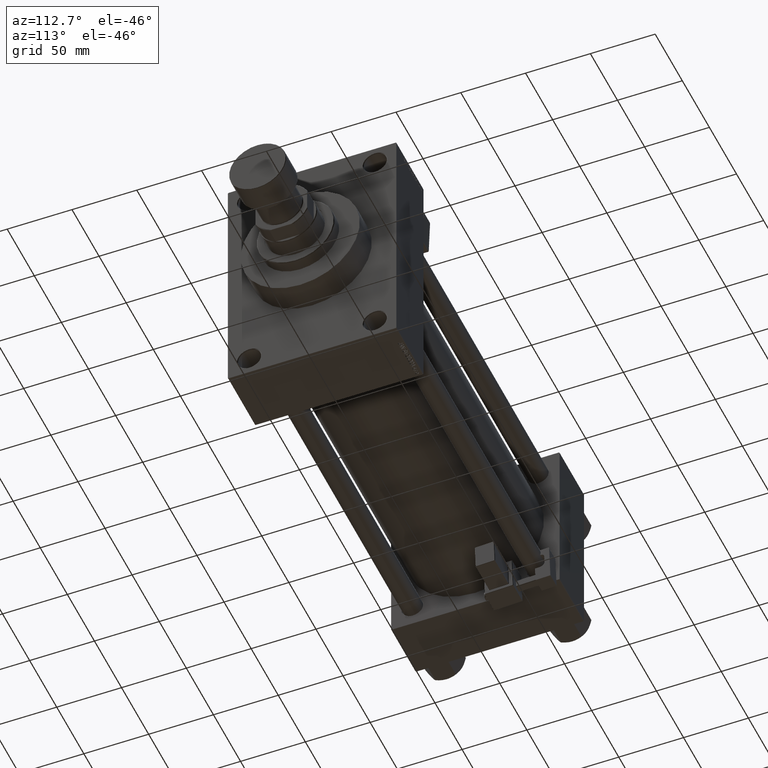
[diagram: clean part render]
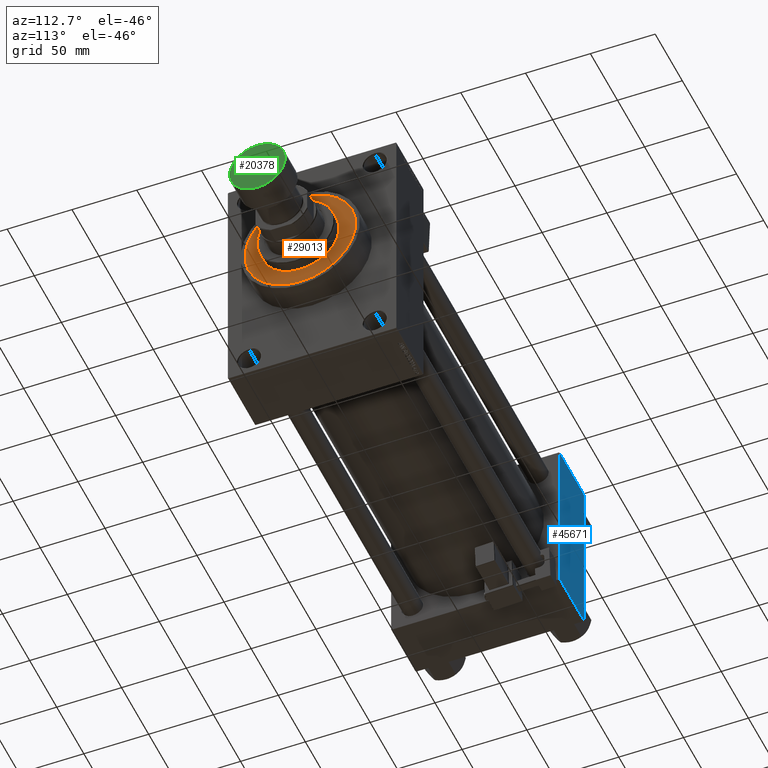
[diagram: same view with three faces highlighted in distinct colors, each labeled with its STEP entity id]
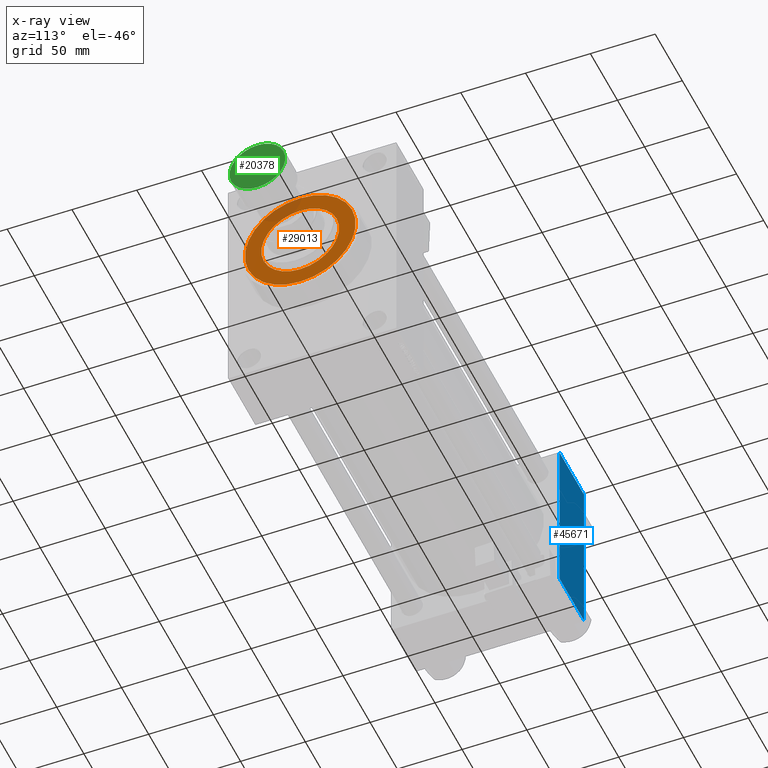
[diagram: x-ray of the same camera — body ghosted, the three highlighted faces saturated]
A machine part, auxiliary view with three faces highlighted in distinct colors.
The next image is the same camera in x-ray (body ghosted, the three faces saturated) — at least one of them is partly hidden behind the body in this view.
Their STEP definitions:

[orange] entity #29013 — the highlighted planar face has unit normal (1, -0, -0).
#2011 = DIRECTION ( 'NONE',  ( 0.000000000000000000, 0.000000000000000000, 1.000000000000000000 ) ) ;
#3142 = CARTESIAN_POINT ( 'NONE',  ( 42.75000000000000000, 5.235365066354935472E-15, 43.25999999999999801 ) ) ;
#3721 = DIRECTION ( 'NONE',  ( 0.000000000000000000, 0.000000000000000000, 1.000000000000000000 ) ) ;
#4889 = AXIS2_PLACEMENT_3D ( 'NONE', #36610, #2011, #28713 ) ;
#5524 = DIRECTION ( 'NONE',  ( 0.000000000000000000, 0.000000000000000000, 1.000000000000000000 ) ) ;
#6264 = DIRECTION ( 'NONE',  ( 1.000000000000000000, 0.000000000000000000, 0.000000000000000000 ) ) ;
#9333 = EDGE_CURVE ( 'NONE', #48675, #47673, #48890, .T. ) ;
#12107 = CARTESIAN_POINT ( 'NONE',  ( -30.00000000000000000, 0.000000000000000000, 43.25999999999999801 ) ) ;
#12560 = DIRECTION ( 'NONE',  ( 1.000000000000000000, 0.000000000000000000, 0.000000000000000000 ) ) ;
#12808 = CARTESIAN_POINT ( 'NONE',  ( 0.000000000000000000, 0.000000000000000000, 43.25999999999999801 ) ) ;
#19235 = DIRECTION ( 'NONE',  ( 1.000000000000000000, 0.000000000000000000, -0.000000000000000000 ) ) ;
#19456 = DIRECTION ( 'NONE',  ( 0.000000000000000000, 0.000000000000000000, 1.000000000000000000 ) ) ;
#19711 = AXIS2_PLACEMENT_3D ( 'NONE', #41117, #22528, #6264 ) ;
#22084 = EDGE_CURVE ( 'NONE', #47673, #48675, #29057, .T. ) ;
#22528 = DIRECTION ( 'NONE',  ( 0.000000000000000000, 0.000000000000000000, 1.000000000000000000 ) ) ;
#26165 = CIRCLE ( 'NONE', #19711, 30.00000000000000000 ) ;
#26713 = EDGE_CURVE ( 'NONE', #43034, #42882, #44691, .T. ) ;
#27727 = AXIS2_PLACEMENT_3D ( 'NONE', #12808, #19456, #12560 ) ;
#28668 = CARTESIAN_POINT ( 'NONE',  ( 0.000000000000000000, 0.000000000000000000, 43.25999999999999801 ) ) ;
#28713 = DIRECTION ( 'NONE',  ( 1.000000000000000000, 0.000000000000000000, 0.000000000000000000 ) ) ;
#29013 = ADVANCED_FACE ( 'NONE', ( #30419, #45949 ), #38332, .T. ) ;
#29057 = CIRCLE ( 'NONE', #48622, 42.75000000000000000 ) ;
#30419 = FACE_BOUND ( 'NONE', #35155, .T. ) ;
#30892 = EDGE_CURVE ( 'NONE', #42882, #43034, #26165, .T. ) ;
#31512 = ORIENTED_EDGE ( 'NONE', *, *, #9333, .T. ) ;
#31953 = ORIENTED_EDGE ( 'NONE', *, *, #26713, .F. ) ;
#32245 = EDGE_LOOP ( 'NONE', ( #31512, #36092 ) ) ;
#35155 = EDGE_LOOP ( 'NONE', ( #37975, #31953 ) ) ;
#36092 = ORIENTED_EDGE ( 'NONE', *, *, #22084, .T. ) ;
#36610 = CARTESIAN_POINT ( 'NONE',  ( 0.000000000000000000, 0.000000000000000000, 43.25999999999999801 ) ) ;
#36674 = AXIS2_PLACEMENT_3D ( 'NONE', #38575, #3721, #19235 ) ;
#37008 = CARTESIAN_POINT ( 'NONE',  ( -42.75000000000000000, 0.000000000000000000, 43.25999999999999801 ) ) ;
#37975 = ORIENTED_EDGE ( 'NONE', *, *, #30892, .F. ) ;
#38332 = PLANE ( 'NONE',  #36674 ) ;
#38575 = CARTESIAN_POINT ( 'NONE',  ( 0.000000000000000000, 0.000000000000000000, 43.25999999999999801 ) ) ;
#39037 = CARTESIAN_POINT ( 'NONE',  ( 30.00000000000000000, 3.673940397442059178E-15, 43.25999999999999801 ) ) ;
#41117 = CARTESIAN_POINT ( 'NONE',  ( 0.000000000000000000, 0.000000000000000000, 43.25999999999999801 ) ) ;
#42882 = VERTEX_POINT ( 'NONE', #12107 ) ;
#43034 = VERTEX_POINT ( 'NONE', #39037 ) ;
#44202 = DIRECTION ( 'NONE',  ( 1.000000000000000000, 0.000000000000000000, 0.000000000000000000 ) ) ;
#44691 = CIRCLE ( 'NONE', #4889, 30.00000000000000000 ) ;
#45949 = FACE_OUTER_BOUND ( 'NONE', #32245, .T. ) ;
#47673 = VERTEX_POINT ( 'NONE', #3142 ) ;
#48622 = AXIS2_PLACEMENT_3D ( 'NONE', #28668, #5524, #44202 ) ;
#48675 = VERTEX_POINT ( 'NONE', #37008 ) ;
#48890 = CIRCLE ( 'NONE', #27727, 42.75000000000000000 ) ;

[blue] entity #45671 — the highlighted planar face has unit normal (0, 1, 0).
#1414 = PLANE ( 'NONE',  #48759 ) ;
#1666 = DIRECTION ( 'NONE',  ( -0.000000000000000000, 1.000000000000000000, 0.000000000000000000 ) ) ;
#1918 = DIRECTION ( 'NONE',  ( 0.000000000000000000, -0.000000000000000000, 1.000000000000000000 ) ) ;
#4237 = VECTOR ( 'NONE', #15345, 1000.000000000000000 ) ;
#7540 = DIRECTION ( 'NONE',  ( 0.000000000000000000, 0.000000000000000000, -1.000000000000000000 ) ) ;
#9048 = CARTESIAN_POINT ( 'NONE',  ( 45.00000000000000000, 65.00000000000000000, 65.00000000000001421 ) ) ;
#10759 = EDGE_CURVE ( 'NONE', #10816, #26862, #16957, .T. ) ;
#10816 = VERTEX_POINT ( 'NONE', #39376 ) ;
#15345 = DIRECTION ( 'NONE',  ( -1.000000000000000000, 0.000000000000000000, 0.000000000000000000 ) ) ;
#15859 = ORIENTED_EDGE ( 'NONE', *, *, #10759, .F. ) ;
#16957 = LINE ( 'NONE', #43190, #42422 ) ;
#21026 = DIRECTION ( 'NONE',  ( 0.000000000000000000, 0.000000000000000000, -1.000000000000000000 ) ) ;
#23283 = LINE ( 'NONE', #42390, #30769 ) ;
#24307 = EDGE_CURVE ( 'NONE', #48055, #24808, #23283, .T. ) ;
#24808 = VERTEX_POINT ( 'NONE', #33309 ) ;
#26862 = VERTEX_POINT ( 'NONE', #41930 ) ;
#28594 = VECTOR ( 'NONE', #35718, 1000.000000000000000 ) ;
#29423 = ORIENTED_EDGE ( 'NONE', *, *, #30203, .T. ) ;
#30203 = EDGE_CURVE ( 'NONE', #10816, #48055, #43607, .T. ) ;
#30360 = CARTESIAN_POINT ( 'NONE',  ( 45.00000000000000000, 65.00000000000000000, -64.49999999999995737 ) ) ;
#30769 = VECTOR ( 'NONE', #7540, 1000.000000000000000 ) ;
#33309 = CARTESIAN_POINT ( 'NONE',  ( 45.00000000000000000, 65.00000000000000000, -64.49999999999995737 ) ) ;
#35718 = DIRECTION ( 'NONE',  ( 1.000000000000000000, 0.000000000000000000, 0.000000000000000000 ) ) ;
#37721 = ORIENTED_EDGE ( 'NONE', *, *, #48858, .T. ) ;
#38426 = EDGE_LOOP ( 'NONE', ( #45387, #37721, #15859, #29423 ) ) ;
#38518 = LINE ( 'NONE', #30360, #4237 ) ;
#39376 = CARTESIAN_POINT ( 'NONE',  ( 0.000000000000000000, 65.00000000000000000, 64.49999999999998579 ) ) ;
#41930 = CARTESIAN_POINT ( 'NONE',  ( 0.000000000000000000, 65.00000000000000000, -64.49999999999995737 ) ) ;
#42390 = CARTESIAN_POINT ( 'NONE',  ( 45.00000000000000000, 65.00000000000000000, 65.00000000000001421 ) ) ;
#42422 = VECTOR ( 'NONE', #21026, 1000.000000000000000 ) ;
#43190 = CARTESIAN_POINT ( 'NONE',  ( 0.000000000000000000, 65.00000000000000000, 65.00000000000001421 ) ) ;
#43607 = LINE ( 'NONE', #48195, #28594 ) ;
#43642 = FACE_OUTER_BOUND ( 'NONE', #38426, .T. ) ;
#45387 = ORIENTED_EDGE ( 'NONE', *, *, #24307, .T. ) ;
#45671 = ADVANCED_FACE ( 'NONE', ( #43642 ), #1414, .T. ) ;
#46764 = CARTESIAN_POINT ( 'NONE',  ( 45.00000000000000000, 65.00000000000000000, 64.49999999999998579 ) ) ;
#48055 = VERTEX_POINT ( 'NONE', #46764 ) ;
#48195 = CARTESIAN_POINT ( 'NONE',  ( 45.00000000000000000, 65.00000000000000000, 64.49999999999998579 ) ) ;
#48759 = AXIS2_PLACEMENT_3D ( 'NONE', #9048, #1666, #1918 ) ;
#48858 = EDGE_CURVE ( 'NONE', #24808, #26862, #38518, .T. ) ;

[green] entity #20378 — the highlighted planar face has unit normal (1, 0, 0).
#2552 = FACE_OUTER_BOUND ( 'NONE', #34139, .T. ) ;
#2802 = DIRECTION ( 'NONE',  ( 1.000000000000000000, 0.000000000000000000, -0.000000000000000000 ) ) ;
#3982 = VERTEX_POINT ( 'NONE', #38719 ) ;
#4274 = AXIS2_PLACEMENT_3D ( 'NONE', #13022, #40499, #8968 ) ;
#4343 = EDGE_CURVE ( 'NONE', #21058, #3982, #47064, .T. ) ;
#8968 = DIRECTION ( 'NONE',  ( 1.000000000000000000, 0.000000000000000000, 0.000000000000000000 ) ) ;
#11327 = CARTESIAN_POINT ( 'NONE',  ( -21.50000000000000000, 2.663606788145493022E-15, 0.000000000000000000 ) ) ;
#13022 = CARTESIAN_POINT ( 'NONE',  ( 0.000000000000000000, 0.000000000000000000, 0.000000000000000000 ) ) ;
#20378 = ADVANCED_FACE ( 'NONE', ( #2552 ), #21617, .T. ) ;
#21058 = VERTEX_POINT ( 'NONE', #11327 ) ;
#21120 = DIRECTION ( 'NONE',  ( 0.000000000000000000, 0.000000000000000000, 1.000000000000000000 ) ) ;
#21617 = PLANE ( 'NONE',  #23426 ) ;
#23426 = AXIS2_PLACEMENT_3D ( 'NONE', #37667, #21120, #2802 ) ;
#25117 = AXIS2_PLACEMENT_3D ( 'NONE', #46793, #42222, #42723 ) ;
#29354 = ORIENTED_EDGE ( 'NONE', *, *, #49988, .T. ) ;
#33388 = ORIENTED_EDGE ( 'NONE', *, *, #4343, .T. ) ;
#34139 = EDGE_LOOP ( 'NONE', ( #29354, #33388 ) ) ;
#37667 = CARTESIAN_POINT ( 'NONE',  ( 0.000000000000000000, 0.000000000000000000, 0.000000000000000000 ) ) ;
#38719 = CARTESIAN_POINT ( 'NONE',  ( 21.50000000000000000, 0.000000000000000000, 0.000000000000000000 ) ) ;
#40499 = DIRECTION ( 'NONE',  ( 0.000000000000000000, 0.000000000000000000, 1.000000000000000000 ) ) ;
#42222 = DIRECTION ( 'NONE',  ( 0.000000000000000000, 0.000000000000000000, 1.000000000000000000 ) ) ;
#42723 = DIRECTION ( 'NONE',  ( 1.000000000000000000, 0.000000000000000000, 0.000000000000000000 ) ) ;
#46793 = CARTESIAN_POINT ( 'NONE',  ( 0.000000000000000000, 0.000000000000000000, 0.000000000000000000 ) ) ;
#47064 = CIRCLE ( 'NONE', #25117, 21.50000000000000000 ) ;
#48143 = CIRCLE ( 'NONE', #4274, 21.50000000000000000 ) ;
#49988 = EDGE_CURVE ( 'NONE', #3982, #21058, #48143, .T. ) ;